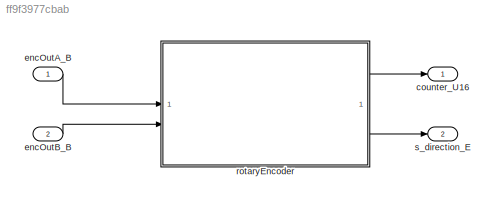
MODEL slx_ff9f3977cbab
KIND model
CONFIG AbsTol = auto
CONFIG EnableMultiTasking = off
CONFIG FixedStep = 0.01
CONFIG MaxStep = auto
CONFIG MinStep = auto
CONFIG RelTol = 1e-3
CONFIG SampleTimeConstraint = Unconstrained
CONFIG SolverName = FixedStepDiscrete
CONFIG StartTime = 0.0
CONFIG StopTime = 10.0
BLOCK [Outport] counter_U16
  OutDataTypeStr = uint16
BLOCK [Inport] encOutA_B
  OutDataTypeStr = boolean
BLOCK [Inport] encOutB_B
  OutDataTypeStr = boolean
  Port = 2
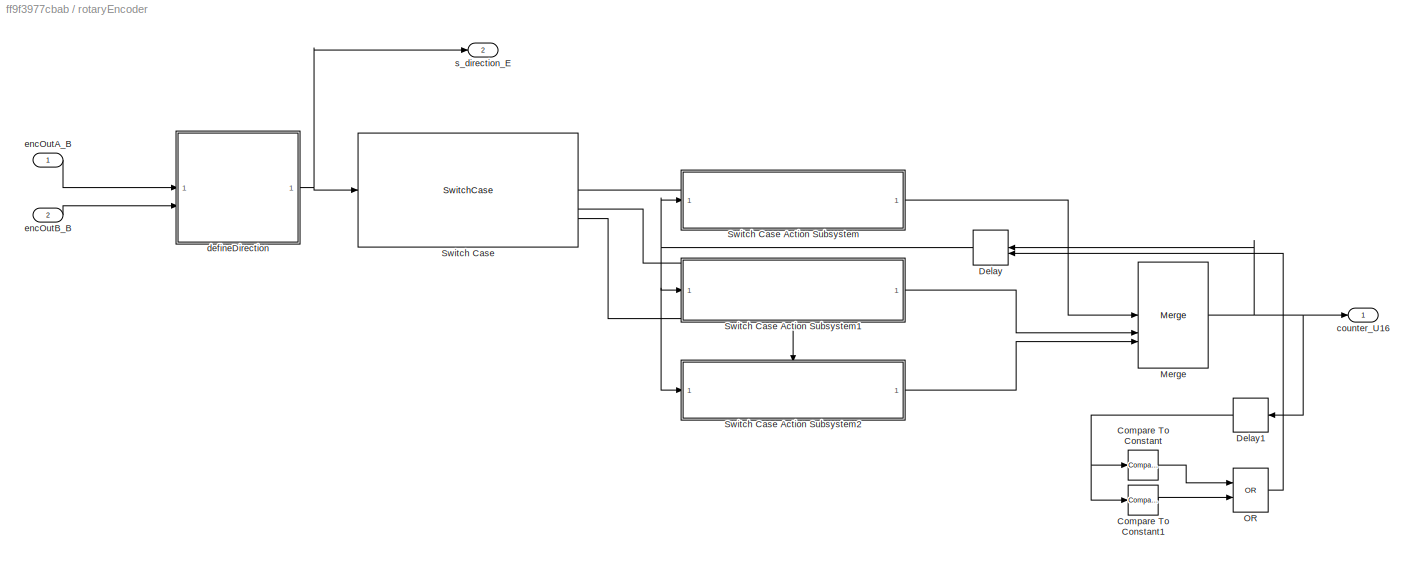
BLOCK [SubSystem] rotaryEncoder
  RTWFcnNameOpts = Use subsystem name
  RTWFileNameOpts = Use subsystem name
  RTWSystemCode = Reusable function
  TreatAsAtomicUnit = on
BLOCK [Reference] rotaryEncoder/Compare To Constant  REF=simulink/Logic and Bit
Operations/Compare
To Constant
  SourceBlock = simulink/Logic and Bit\nOperations/Compare\nTo Constant
  SourceType = Compare To Constant
BLOCK [Reference] rotaryEncoder/Compare To Constant1  REF=simulink/Logic and Bit
Operations/Compare
To Constant
  SourceBlock = simulink/Logic and Bit\nOperations/Compare\nTo Constant
  SourceType = Compare To Constant
BLOCK [Delay] rotaryEncoder/Delay
  DelayLength = 1
  ExternalReset = Rising
  InputPortMap = u0,r5
BLOCK [Delay] rotaryEncoder/Delay1
  DelayLength = 1
  InputPortMap = u0
BLOCK [Merge] rotaryEncoder/Merge
  Inputs = 3
BLOCK [Logic] rotaryEncoder/OR
  AllPortsSameDT = off
  Operator = OR
  OutDataTypeStr = boolean
BLOCK [SwitchCase] rotaryEncoder/Switch Case
  CaseConditions = {ROTATION_DIRECTION_E.CLOCKWISE_ROTATION,ROTATION_DIRECTION_E.ANTI_CLOCKWISE_ROTATION}
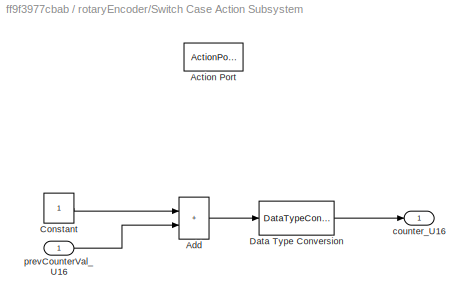
BLOCK [SubSystem] rotaryEncoder/Switch Case Action Subsystem
  TreatAsAtomicUnit = on
BLOCK [ActionPort] rotaryEncoder/Switch Case Action Subsystem/Action Port
  ActionPortLabel = case [ CLOCKWISE_ROTATION ]:
BLOCK [Sum] rotaryEncoder/Switch Case Action Subsystem/Add
  IconShape = rectangular
BLOCK [Constant] rotaryEncoder/Switch Case Action Subsystem/Constant
  OutDataTypeStr = int8
BLOCK [DataTypeConversion] rotaryEncoder/Switch Case Action Subsystem/Data Type Conversion
  RndMeth = Floor
  SaturateOnIntegerOverflow = off
BLOCK [Outport] rotaryEncoder/Switch Case Action Subsystem/counter_U16
  OutDataTypeStr = uint16
BLOCK [Inport] rotaryEncoder/Switch Case Action Subsystem/prevCounterVal_U16
  OutDataTypeStr = uint16
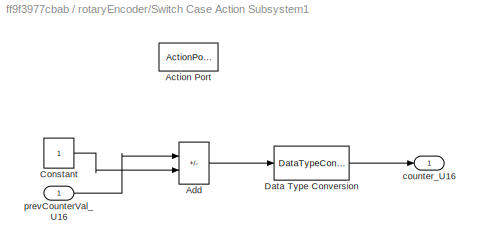
BLOCK [SubSystem] rotaryEncoder/Switch Case Action Subsystem1
  TreatAsAtomicUnit = on
BLOCK [ActionPort] rotaryEncoder/Switch Case Action Subsystem1/Action Port
  ActionPortLabel = case [ ANTI_CLOCKWISE_ROTATION ]:
BLOCK [Sum] rotaryEncoder/Switch Case Action Subsystem1/Add
  IconShape = rectangular
  Inputs = +-
BLOCK [Constant] rotaryEncoder/Switch Case Action Subsystem1/Constant
  OutDataTypeStr = int8
BLOCK [DataTypeConversion] rotaryEncoder/Switch Case Action Subsystem1/Data Type Conversion
  RndMeth = Floor
  SaturateOnIntegerOverflow = off
BLOCK [Outport] rotaryEncoder/Switch Case Action Subsystem1/counter_U16
  OutDataTypeStr = uint16
BLOCK [Inport] rotaryEncoder/Switch Case Action Subsystem1/prevCounterVal_U16
  OutDataTypeStr = uint16
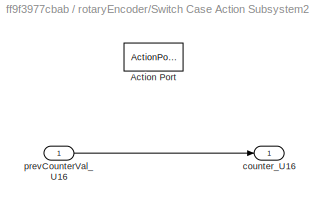
BLOCK [SubSystem] rotaryEncoder/Switch Case Action Subsystem2
  TreatAsAtomicUnit = on
BLOCK [ActionPort] rotaryEncoder/Switch Case Action Subsystem2/Action Port
  ActionPortLabel = default:
BLOCK [Outport] rotaryEncoder/Switch Case Action Subsystem2/counter_U16
  OutDataTypeStr = uint16
BLOCK [Inport] rotaryEncoder/Switch Case Action Subsystem2/prevCounterVal_U16
  OutDataTypeStr = uint16
BLOCK [Outport] rotaryEncoder/counter_U16
  OutDataTypeStr = uint16
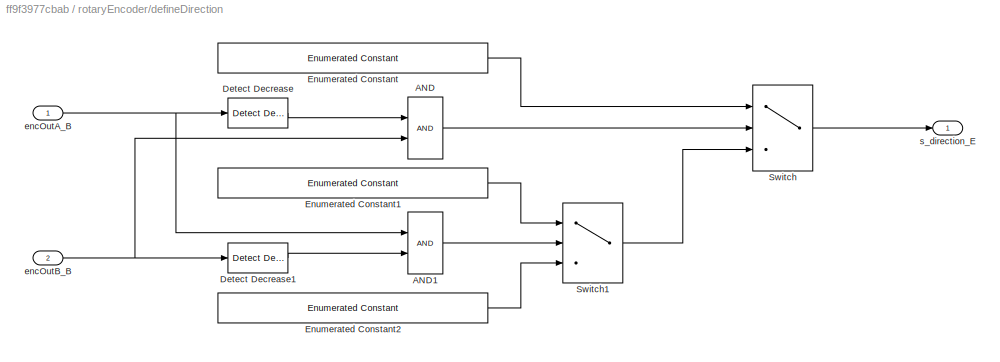
BLOCK [SubSystem] rotaryEncoder/defineDirection
BLOCK [Logic] rotaryEncoder/defineDirection/AND
  AllPortsSameDT = off
  OutDataTypeStr = boolean
BLOCK [Logic] rotaryEncoder/defineDirection/AND1
  AllPortsSameDT = off
  OutDataTypeStr = boolean
BLOCK [Reference] rotaryEncoder/defineDirection/Detect Decrease  REF=simulink/Logic and Bit
Operations/Detect
Decrease
  SourceBlock = simulink/Logic and Bit\nOperations/Detect\nDecrease
  SourceType = Detect Decrease
BLOCK [Reference] rotaryEncoder/defineDirection/Detect Decrease1  REF=simulink/Logic and Bit
Operations/Detect
Decrease
  SourceBlock = simulink/Logic and Bit\nOperations/Detect\nDecrease
  SourceType = Detect Decrease
BLOCK [Reference] rotaryEncoder/defineDirection/Enumerated Constant  REF=simulink/Sources/Enumerated
Constant
  SourceBlock = simulink/Sources/Enumerated\nConstant
  SourceType = Enumerated Constant
BLOCK [Reference] rotaryEncoder/defineDirection/Enumerated Constant1  REF=simulink/Sources/Enumerated
Constant
  SourceBlock = simulink/Sources/Enumerated\nConstant
  SourceType = Enumerated Constant
BLOCK [Reference] rotaryEncoder/defineDirection/Enumerated Constant2  REF=simulink/Sources/Enumerated
Constant
  SourceBlock = simulink/Sources/Enumerated\nConstant
  SourceType = Enumerated Constant
BLOCK [Switch] rotaryEncoder/defineDirection/Switch
  Criteria = u2 ~= 0
  InputSameDT = off
  SaturateOnIntegerOverflow = off
BLOCK [Switch] rotaryEncoder/defineDirection/Switch1
  Criteria = u2 ~= 0
  InputSameDT = off
  SaturateOnIntegerOverflow = off
BLOCK [Inport] rotaryEncoder/defineDirection/encOutA_B
  OutDataTypeStr = boolean
BLOCK [Inport] rotaryEncoder/defineDirection/encOutB_B
  OutDataTypeStr = boolean
  Port = 2
BLOCK [Outport] rotaryEncoder/defineDirection/s_direction_E
  OutDataTypeStr = Enum: ROTATION_DIRECTION_E
BLOCK [Inport] rotaryEncoder/encOutA_B
  OutDataTypeStr = boolean
BLOCK [Inport] rotaryEncoder/encOutB_B
  OutDataTypeStr = boolean
  Port = 2
BLOCK [Outport] rotaryEncoder/s_direction_E
  OutDataTypeStr = Enum: ROTATION_DIRECTION_E
  Port = 2
BLOCK [Outport] s_direction_E
  OutDataTypeStr = Enum: ROTATION_DIRECTION_E
  Port = 2
LINE encOutA_B:1 -> rotaryEncoder:1
LINE encOutB_B:1 -> rotaryEncoder:2
LINE rotaryEncoder/Compare To Constant1:1 -> rotaryEncoder/OR:2
LINE rotaryEncoder/Compare To Constant:1 -> rotaryEncoder/OR:1
NET rotaryEncoder/Delay1:1 -> rotaryEncoder/Compare To Constant1:1, rotaryEncoder/Compare To Constant:1
NET rotaryEncoder/Delay:1 -> rotaryEncoder/Switch Case Action Subsystem1:1, rotaryEncoder/Switch Case Action Subsystem2:1, rotaryEncoder/Switch Case Action Subsystem:1
NET rotaryEncoder/Merge:1 -> rotaryEncoder/Delay1:1, rotaryEncoder/Delay:1, rotaryEncoder/counter_U16:1
LINE rotaryEncoder/OR:1 -> rotaryEncoder/Delay:2
LINE rotaryEncoder/Switch Case Action Subsystem/Add:1 -> rotaryEncoder/Switch Case Action Subsystem/Data Type Conversion:1
LINE rotaryEncoder/Switch Case Action Subsystem/Constant:1 -> rotaryEncoder/Switch Case Action Subsystem/Add:1
LINE rotaryEncoder/Switch Case Action Subsystem/Data Type Conversion:1 -> rotaryEncoder/Switch Case Action Subsystem/counter_U16:1
LINE rotaryEncoder/Switch Case Action Subsystem/prevCounterVal_U16:1 -> rotaryEncoder/Switch Case Action Subsystem/Add:2
LINE rotaryEncoder/Switch Case Action Subsystem1/Add:1 -> rotaryEncoder/Switch Case Action Subsystem1/Data Type Conversion:1
LINE rotaryEncoder/Switch Case Action Subsystem1/Constant:1 -> rotaryEncoder/Switch Case Action Subsystem1/Add:2
LINE rotaryEncoder/Switch Case Action Subsystem1/Data Type Conversion:1 -> rotaryEncoder/Switch Case Action Subsystem1/counter_U16:1
LINE rotaryEncoder/Switch Case Action Subsystem1/prevCounterVal_U16:1 -> rotaryEncoder/Switch Case Action Subsystem1/Add:1
LINE rotaryEncoder/Switch Case Action Subsystem1:1 -> rotaryEncoder/Merge:2
LINE rotaryEncoder/Switch Case Action Subsystem2/prevCounterVal_U16:1 -> rotaryEncoder/Switch Case Action Subsystem2/counter_U16:1
LINE rotaryEncoder/Switch Case Action Subsystem2:1 -> rotaryEncoder/Merge:3
LINE rotaryEncoder/Switch Case Action Subsystem:1 -> rotaryEncoder/Merge:1
LINE rotaryEncoder/Switch Case:1 -> rotaryEncoder/Switch Case Action Subsystem:ifaction
LINE rotaryEncoder/Switch Case:2 -> rotaryEncoder/Switch Case Action Subsystem1:ifaction
LINE rotaryEncoder/Switch Case:3 -> rotaryEncoder/Switch Case Action Subsystem2:ifaction
LINE rotaryEncoder/defineDirection/AND1:1 -> rotaryEncoder/defineDirection/Switch1:2
LINE rotaryEncoder/defineDirection/AND:1 -> rotaryEncoder/defineDirection/Switch:2
LINE rotaryEncoder/defineDirection/Detect Decrease1:1 -> rotaryEncoder/defineDirection/AND1:2
LINE rotaryEncoder/defineDirection/Detect Decrease:1 -> rotaryEncoder/defineDirection/AND:1
LINE rotaryEncoder/defineDirection/Enumerated Constant1:1 -> rotaryEncoder/defineDirection/Switch1:1
LINE rotaryEncoder/defineDirection/Enumerated Constant2:1 -> rotaryEncoder/defineDirection/Switch1:3
LINE rotaryEncoder/defineDirection/Enumerated Constant:1 -> rotaryEncoder/defineDirection/Switch:1
LINE rotaryEncoder/defineDirection/Switch1:1 -> rotaryEncoder/defineDirection/Switch:3
LINE rotaryEncoder/defineDirection/Switch:1 -> rotaryEncoder/defineDirection/s_direction_E:1
NET rotaryEncoder/defineDirection/encOutA_B:1 -> rotaryEncoder/defineDirection/AND1:1, rotaryEncoder/defineDirection/Detect Decrease:1
NET rotaryEncoder/defineDirection/encOutB_B:1 -> rotaryEncoder/defineDirection/AND:2, rotaryEncoder/defineDirection/Detect Decrease1:1
NET rotaryEncoder/defineDirection:1 -> rotaryEncoder/Switch Case:1, rotaryEncoder/s_direction_E:1
LINE rotaryEncoder/encOutA_B:1 -> rotaryEncoder/defineDirection:1
LINE rotaryEncoder/encOutB_B:1 -> rotaryEncoder/defineDirection:2
LINE rotaryEncoder:1 -> counter_U16:1
LINE rotaryEncoder:2 -> s_direction_E:1
note: NET lines group one-source signal fan-out (src -> all destinations, sorted); 1:1 wires keep LINE
